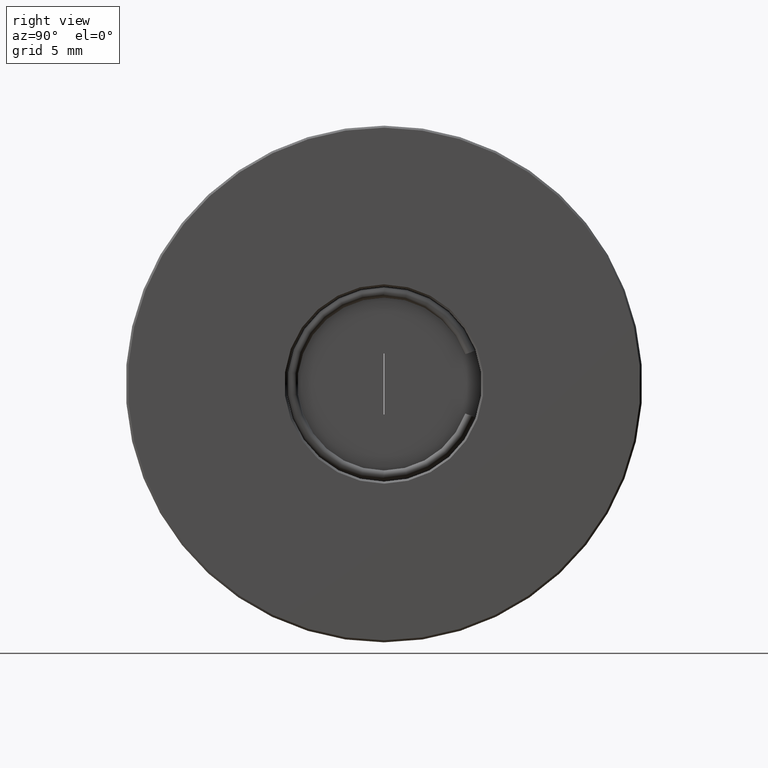
[diagram: clean part render]
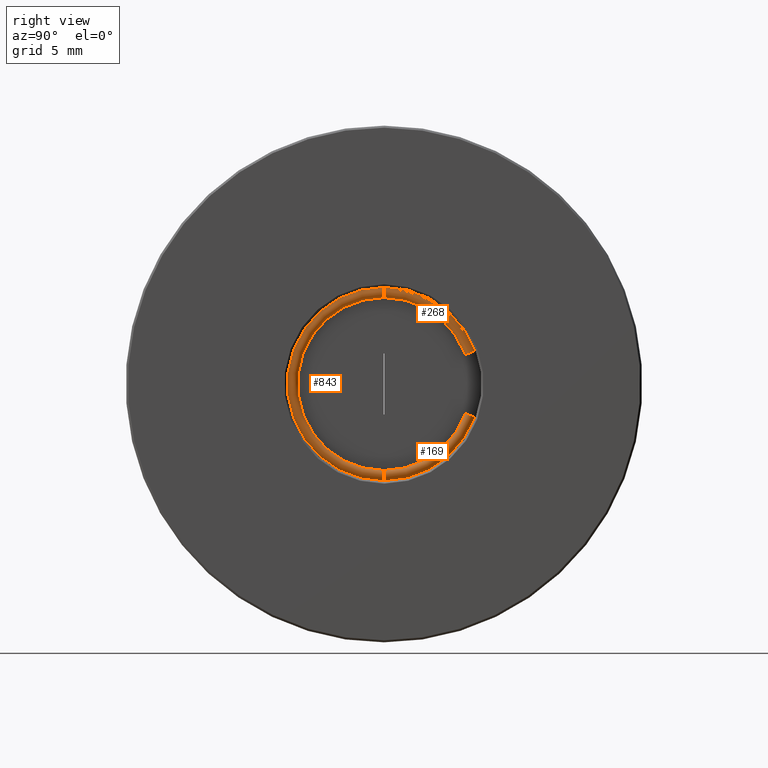
[diagram: same view with one multi-face feature highlighted, each face labeled with its STEP entity id]
A machine part, right view. The highlighted faces form ONE feature: a constant-radius fillet chain: 3 tangent blend faces with common blend radius 0.25 mm. The faces share edges in the B-rep.
Their STEP definitions:
[1] entity #169 (Torus):
#4 = EDGE_LOOP ( 'NONE', ( #26, #758, #824, #227 ) ) ;
#6 = CARTESIAN_POINT ( 'NONE',  ( -4.034863851253000178, 1.436758840805285820, 21.14999999999999858 ) ) ;
#26 = ORIENTED_EDGE ( 'NONE', *, *, #889, .F. ) ;
#52 = CARTESIAN_POINT ( 'NONE',  ( -4.034863851252989519, 5.430452479329460402, 23.94641439060306709 ) ) ;
#65 = CARTESIAN_POINT ( 'NONE',  ( -4.034863851253000178, 1.436758841085000071, 25.39999999999999858 ) ) ;
#128 = DIRECTION ( 'NONE',  ( 1.000000000000000000, -3.053113317719177725E-15, -1.221245326846538123E-15 ) ) ;
#144 = EDGE_CURVE ( 'NONE', #631, #492, #539, .T. ) ;
#151 = CIRCLE ( 'NONE', #274, 4.250000000000000000 ) ;
#169 = ADVANCED_FACE ( 'NONE', ( #341 ), #839, .T. ) ;
#188 = CARTESIAN_POINT ( 'NONE',  ( -4.034863851252994849, 1.436758840788832314, 20.89999999999999858 ) ) ;
#192 = DIRECTION ( 'NONE',  ( 1.000000000000000000, -3.053113317719177725E-15, -1.221245326846538123E-15 ) ) ;
#227 = ORIENTED_EDGE ( 'NONE', *, *, #611, .F. ) ;
#258 = AXIS2_PLACEMENT_3D ( 'NONE', #778, #480, #907 ) ;
#266 = DIRECTION ( 'NONE',  ( 1.000000000000000000, -3.053113317719177725E-15, -1.221245326846538123E-15 ) ) ;
#274 = AXIS2_PLACEMENT_3D ( 'NONE', #344, #192, #913 ) ;
#341 = FACE_OUTER_BOUND ( 'NONE', #4, .T. ) ;
#344 = CARTESIAN_POINT ( 'NONE',  ( -4.034863851253000178, 1.436758841085000071, 25.39999999999999858 ) ) ;
#363 = AXIS2_PLACEMENT_3D ( 'NONE', #490, #266, #576 ) ;
#372 = VERTEX_POINT ( 'NONE', #6 ) ;
#378 = AXIS2_PLACEMENT_3D ( 'NONE', #188, #929, #644 ) ;
#396 = CARTESIAN_POINT ( 'NONE',  ( -4.034863851252988631, 5.900298789711156289, 23.77540431890931671 ) ) ;
#426 = DIRECTION ( 'NONE',  ( -1.221245327047478942E-15, -6.581508912423552347E-11, -1.000000000000000000 ) ) ;
#480 = DIRECTION ( 'NONE',  ( 2.191821476484100505E-15, -0.3420201433875058039, -0.9396926207634015427 ) ) ;
#490 = CARTESIAN_POINT ( 'NONE',  ( -4.034863851253000178, 1.436758841085000071, 25.39999999999999858 ) ) ;
#492 = VERTEX_POINT ( 'NONE', #396 ) ;
#522 = AXIS2_PLACEMENT_3D ( 'NONE', #65, #128, #426 ) ;
#539 = CIRCLE ( 'NONE', #363, 4.750000000000000000 ) ;
#576 = DIRECTION ( 'NONE',  ( 3.104242009642707308E-15, 1.000000000000000000, -6.581577388350236595E-11 ) ) ;
#611 = EDGE_CURVE ( 'NONE', #372, #665, #151, .T. ) ;
#631 = VERTEX_POINT ( 'NONE', #789 ) ;
#644 = DIRECTION ( 'NONE',  ( 1.000000000000000000, -3.469446951953611033E-15, 0.000000000000000000 ) ) ;
#665 = VERTEX_POINT ( 'NONE', #52 ) ;
#703 = EDGE_CURVE ( 'NONE', #492, #665, #927, .T. ) ;
#758 = ORIENTED_EDGE ( 'NONE', *, *, #144, .T. ) ;
#778 = CARTESIAN_POINT ( 'NONE',  ( -4.034863851253018829, 5.665375634520317227, 23.86090935475618835 ) ) ;
#789 = CARTESIAN_POINT ( 'NONE',  ( -4.034863851253006395, 1.436758840772378365, 20.64999999999999858 ) ) ;
#795 = CIRCLE ( 'NONE', #378, 0.2500000000000002220 ) ;
#824 = ORIENTED_EDGE ( 'NONE', *, *, #703, .T. ) ;
#839 = TOROIDAL_SURFACE ( 'NONE', #522, 4.500000000000000000, 0.2500000000000000000 ) ;
#889 = EDGE_CURVE ( 'NONE', #631, #372, #795, .T. ) ;
#907 = DIRECTION ( 'NONE',  ( 3.469446951953611033E-15, -0.9396926207634005435, 0.3420201433875083574 ) ) ;
#913 = DIRECTION ( 'NONE',  ( 3.061276722312012589E-15, 1.000000000000000000, -6.581581684878969820E-11 ) ) ;
#927 = CIRCLE ( 'NONE', #258, 0.2500000000000002220 ) ;
#929 = DIRECTION ( 'NONE',  ( -3.053113317638805026E-15, -1.000000000000000000, 6.581508406600454517E-11 ) ) ;
[2] entity #843 (Torus):
#6 = CARTESIAN_POINT ( 'NONE',  ( -4.034863851253000178, 1.436758840805285820, 21.14999999999999858 ) ) ;
#35 = CARTESIAN_POINT ( 'NONE',  ( -4.034863851253005507, 1.436758841381168494, 29.89999999999999858 ) ) ;
#86 = ORIENTED_EDGE ( 'NONE', *, *, #537, .F. ) ;
#98 = DIRECTION ( 'NONE',  ( -1.000000000000000000, 3.469446951953611033E-15, 0.000000000000000000 ) ) ;
#188 = CARTESIAN_POINT ( 'NONE',  ( -4.034863851252994849, 1.436758840788832314, 20.89999999999999858 ) ) ;
#210 = AXIS2_PLACEMENT_3D ( 'NONE', #632, #928, #487 ) ;
#251 = DIRECTION ( 'NONE',  ( -1.221245327047478942E-15, -6.581508912423552347E-11, -1.000000000000000000 ) ) ;
#348 = EDGE_LOOP ( 'NONE', ( #535, #419, #524, #86 ) ) ;
#349 = TOROIDAL_SURFACE ( 'NONE', #476, 4.500000000000000000, 0.2500000000000000000 ) ;
#372 = VERTEX_POINT ( 'NONE', #6 ) ;
#378 = AXIS2_PLACEMENT_3D ( 'NONE', #188, #929, #644 ) ;
#402 = DIRECTION ( 'NONE',  ( 3.053113317638805026E-15, 1.000000000000000000, -6.581520653068446578E-11 ) ) ;
#419 = ORIENTED_EDGE ( 'NONE', *, *, #566, .T. ) ;
#435 = EDGE_CURVE ( 'NONE', #704, #809, #658, .T. ) ;
#476 = AXIS2_PLACEMENT_3D ( 'NONE', #541, #826, #251 ) ;
#487 = DIRECTION ( 'NONE',  ( 3.104242009642707308E-15, 1.000000000000000000, -6.581577388350236595E-11 ) ) ;
#504 = AXIS2_PLACEMENT_3D ( 'NONE', #814, #829, #693 ) ;
#524 = ORIENTED_EDGE ( 'NONE', *, *, #889, .T. ) ;
#528 = FACE_OUTER_BOUND ( 'NONE', #348, .T. ) ;
#535 = ORIENTED_EDGE ( 'NONE', *, *, #435, .F. ) ;
#537 = EDGE_CURVE ( 'NONE', #809, #372, #910, .T. ) ;
#541 = CARTESIAN_POINT ( 'NONE',  ( -4.034863851253000178, 1.436758841085000071, 25.39999999999999858 ) ) ;
#566 = EDGE_CURVE ( 'NONE', #704, #631, #625, .T. ) ;
#625 = CIRCLE ( 'NONE', #210, 4.750000000000000000 ) ;
#631 = VERTEX_POINT ( 'NONE', #789 ) ;
#632 = CARTESIAN_POINT ( 'NONE',  ( -4.034863851253000178, 1.436758841085000071, 25.39999999999999858 ) ) ;
#644 = DIRECTION ( 'NONE',  ( 1.000000000000000000, -3.469446951953611033E-15, 0.000000000000000000 ) ) ;
#658 = CIRCLE ( 'NONE', #747, 0.2500000000000002220 ) ;
#690 = CARTESIAN_POINT ( 'NONE',  ( -4.034863851252997513, 1.436758841364714767, 29.64999999999999858 ) ) ;
#693 = DIRECTION ( 'NONE',  ( 3.061276722312012589E-15, 1.000000000000000000, -6.581581684878969820E-11 ) ) ;
#704 = VERTEX_POINT ( 'NONE', #783 ) ;
#747 = AXIS2_PLACEMENT_3D ( 'NONE', #35, #402, #98 ) ;
#783 = CARTESIAN_POINT ( 'NONE',  ( -4.034863851252993960, 1.436758841397622444, 30.14999999999999858 ) ) ;
#789 = CARTESIAN_POINT ( 'NONE',  ( -4.034863851253006395, 1.436758840772378365, 20.64999999999999858 ) ) ;
#795 = CIRCLE ( 'NONE', #378, 0.2500000000000002220 ) ;
#809 = VERTEX_POINT ( 'NONE', #690 ) ;
#814 = CARTESIAN_POINT ( 'NONE',  ( -4.034863851253000178, 1.436758841085000071, 25.39999999999999858 ) ) ;
#826 = DIRECTION ( 'NONE',  ( 1.000000000000000000, -3.053113317719177725E-15, -1.221245326846538123E-15 ) ) ;
#829 = DIRECTION ( 'NONE',  ( 1.000000000000000000, -3.053113317719177725E-15, -1.221245326846538123E-15 ) ) ;
#843 = ADVANCED_FACE ( 'NONE', ( #528 ), #349, .T. ) ;
#889 = EDGE_CURVE ( 'NONE', #631, #372, #795, .T. ) ;
#910 = CIRCLE ( 'NONE', #504, 4.250000000000000000 ) ;
#928 = DIRECTION ( 'NONE',  ( 1.000000000000000000, -3.053113317719177725E-15, -1.221245326846538123E-15 ) ) ;
#929 = DIRECTION ( 'NONE',  ( -3.053113317638805026E-15, -1.000000000000000000, 6.581508406600454517E-11 ) ) ;
[3] entity #268 (Torus):
#35 = CARTESIAN_POINT ( 'NONE',  ( -4.034863851253005507, 1.436758841381168494, 29.89999999999999858 ) ) ;
#70 = VERTEX_POINT ( 'NONE', #621 ) ;
#98 = DIRECTION ( 'NONE',  ( -1.000000000000000000, 3.469446951953611033E-15, 0.000000000000000000 ) ) ;
#113 = CARTESIAN_POINT ( 'NONE',  ( -4.034863851252984190, 5.900298789925018994, 27.02459568050306515 ) ) ;
#134 = CARTESIAN_POINT ( 'NONE',  ( -4.034863851253000178, 1.436758841085000071, 25.39999999999999858 ) ) ;
#171 = DIRECTION ( 'NONE',  ( 3.104242009642707308E-15, 1.000000000000000000, -6.581577388350236595E-11 ) ) ;
#189 = FACE_OUTER_BOUND ( 'NONE', #660, .T. ) ;
#194 = TOROIDAL_SURFACE ( 'NONE', #776, 4.500000000000000000, 0.2500000000000000000 ) ;
#216 = CARTESIAN_POINT ( 'NONE',  ( -4.034863851253018829, 5.665375634722910725, 26.93909064468711634 ) ) ;
#218 = EDGE_CURVE ( 'NONE', #70, #809, #880, .T. ) ;
#241 = CARTESIAN_POINT ( 'NONE',  ( -4.034863851253000178, 1.436758841085000071, 25.39999999999999858 ) ) ;
#261 = CARTESIAN_POINT ( 'NONE',  ( -4.034863851253000178, 1.436758841085000071, 25.39999999999999858 ) ) ;
#268 = ADVANCED_FACE ( 'NONE', ( #189 ), #194, .T. ) ;
#284 = ORIENTED_EDGE ( 'NONE', *, *, #218, .F. ) ;
#310 = EDGE_CURVE ( 'NONE', #602, #70, #716, .T. ) ;
#332 = DIRECTION ( 'NONE',  ( 1.000000000000000000, -3.053113317719177725E-15, -1.221245326846538123E-15 ) ) ;
#402 = DIRECTION ( 'NONE',  ( 3.053113317638805026E-15, 1.000000000000000000, -6.581520653068446578E-11 ) ) ;
#435 = EDGE_CURVE ( 'NONE', #704, #809, #658, .T. ) ;
#457 = AXIS2_PLACEMENT_3D ( 'NONE', #261, #630, #707 ) ;
#519 = ORIENTED_EDGE ( 'NONE', *, *, #871, .T. ) ;
#572 = ORIENTED_EDGE ( 'NONE', *, *, #435, .T. ) ;
#594 = DIRECTION ( 'NONE',  ( 1.033689675075031444E-16, 0.3420201432638105277, -0.9396926208084229737 ) ) ;
#602 = VERTEX_POINT ( 'NONE', #113 ) ;
#621 = CARTESIAN_POINT ( 'NONE',  ( -4.034863851252985967, 5.430452479520808673, 26.85358560887116042 ) ) ;
#630 = DIRECTION ( 'NONE',  ( 1.000000000000000000, -3.053113317719177725E-15, -1.221245326846538123E-15 ) ) ;
#658 = CIRCLE ( 'NONE', #747, 0.2500000000000002220 ) ;
#660 = EDGE_LOOP ( 'NONE', ( #804, #519, #572, #284 ) ) ;
#676 = DIRECTION ( 'NONE',  ( 1.000000000000000000, -3.053113317719177725E-15, -1.221245326846538123E-15 ) ) ;
#690 = CARTESIAN_POINT ( 'NONE',  ( -4.034863851252997513, 1.436758841364714767, 29.64999999999999858 ) ) ;
#704 = VERTEX_POINT ( 'NONE', #783 ) ;
#707 = DIRECTION ( 'NONE',  ( 3.061276722312012589E-15, 1.000000000000000000, -6.581581684878969820E-11 ) ) ;
#716 = CIRCLE ( 'NONE', #805, 0.2500000000000000000 ) ;
#736 = DIRECTION ( 'NONE',  ( 3.469446951953614189E-15, -0.9396926208084209753, -0.3420201432638159122 ) ) ;
#747 = AXIS2_PLACEMENT_3D ( 'NONE', #35, #402, #98 ) ;
#776 = AXIS2_PLACEMENT_3D ( 'NONE', #134, #332, #790 ) ;
#783 = CARTESIAN_POINT ( 'NONE',  ( -4.034863851252993960, 1.436758841397622444, 30.14999999999999858 ) ) ;
#790 = DIRECTION ( 'NONE',  ( -1.221245327047478942E-15, -6.581508912423552347E-11, -1.000000000000000000 ) ) ;
#798 = CIRCLE ( 'NONE', #838, 4.750000000000000000 ) ;
#804 = ORIENTED_EDGE ( 'NONE', *, *, #310, .F. ) ;
#805 = AXIS2_PLACEMENT_3D ( 'NONE', #216, #594, #736 ) ;
#809 = VERTEX_POINT ( 'NONE', #690 ) ;
#838 = AXIS2_PLACEMENT_3D ( 'NONE', #241, #676, #171 ) ;
#871 = EDGE_CURVE ( 'NONE', #602, #704, #798, .T. ) ;
#880 = CIRCLE ( 'NONE', #457, 4.250000000000000000 ) ;